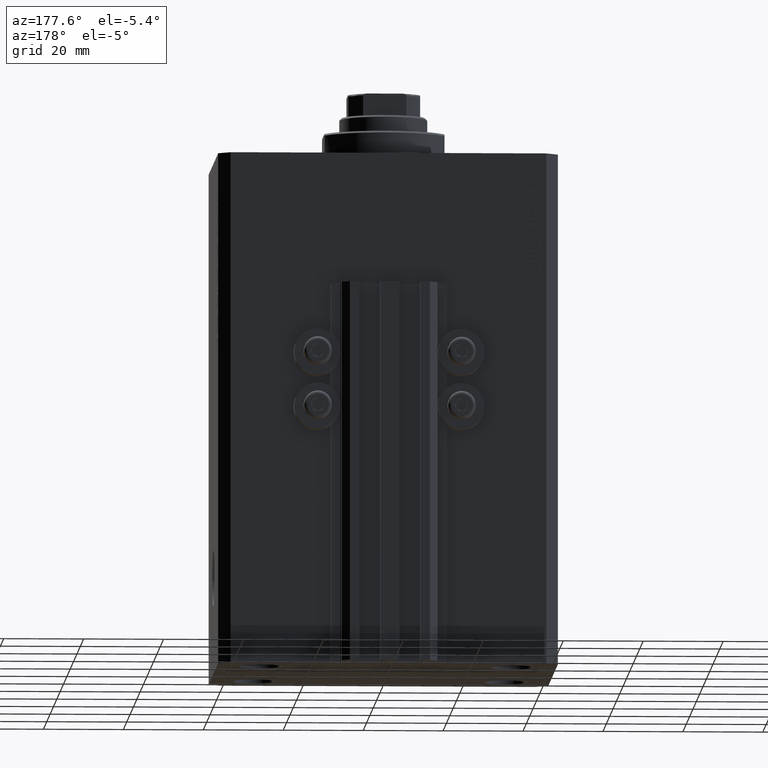
[diagram: clean part render]
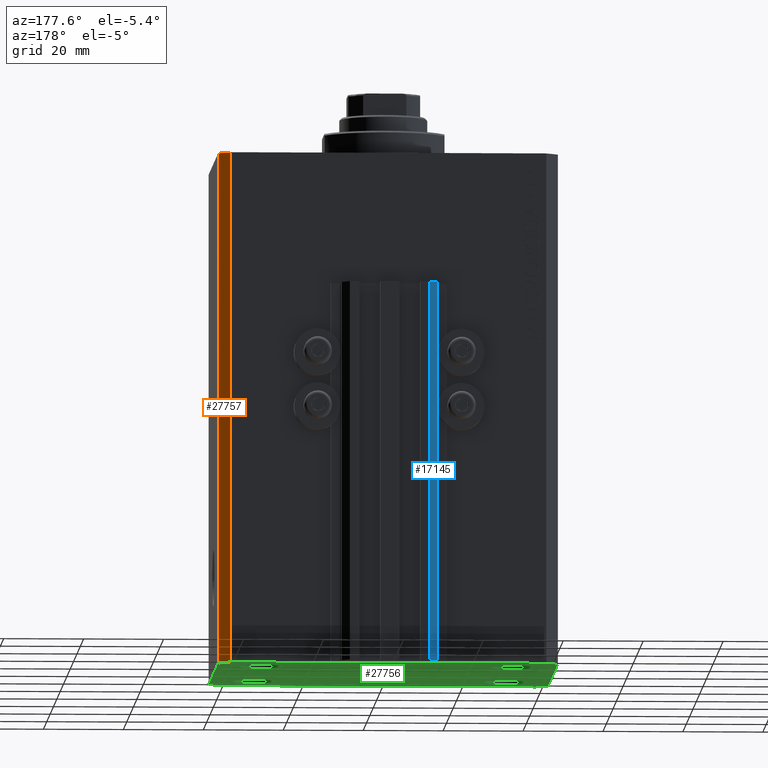
[diagram: same view with three faces highlighted in distinct colors, each labeled with its STEP entity id]
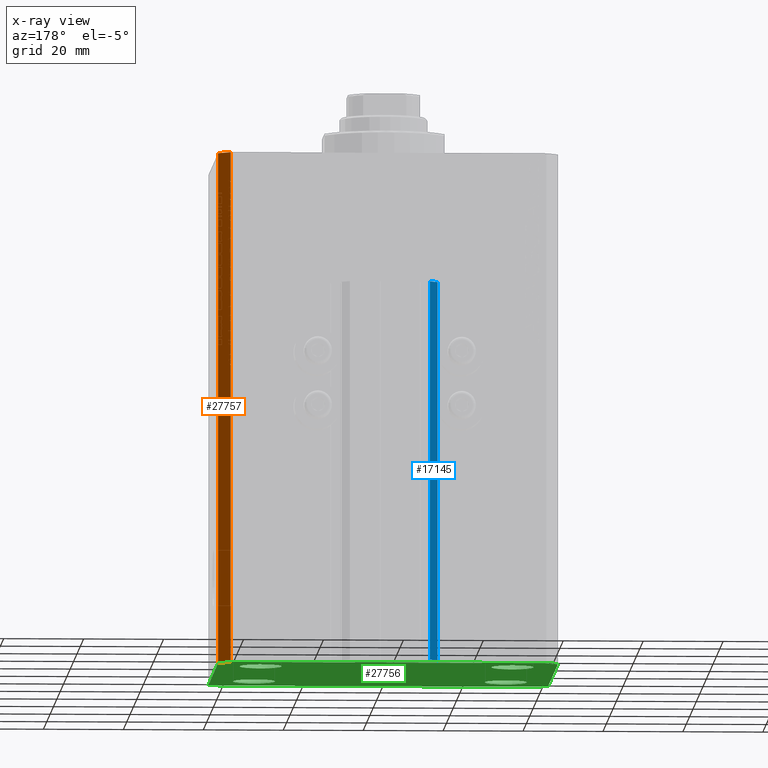
[diagram: x-ray of the same camera — body ghosted, the three highlighted faces saturated]
A machine part, auxiliary view with three faces highlighted in distinct colors.
The next image is the same camera in x-ray (body ghosted, the three faces saturated) — at least one of them is partly hidden behind the body in this view.
Their STEP definitions:

[orange] entity #27757 — the highlighted planar face has unit normal (0.7071, 0.7071, 0).
#1382 = ORIENTED_EDGE ( 'NONE', *, *, #3587, .F. ) ;
#1641 = VECTOR ( 'NONE', #7690, 1000.000000000000000 ) ;
#3587 = EDGE_CURVE ( 'NONE', #23645, #29086, #40416, .T. ) ;
#5223 = EDGE_CURVE ( 'NONE', #29086, #9420, #15084, .T. ) ;
#6011 = LINE ( 'NONE', #28218, #29145 ) ;
#6772 = AXIS2_PLACEMENT_3D ( 'NONE', #38825, #32137, #9431 ) ;
#7690 = DIRECTION ( 'NONE',  ( 0.000000000000000000, 0.000000000000000000, 1.000000000000000000 ) ) ;
#9420 = VERTEX_POINT ( 'NONE', #9746 ) ;
#9431 = DIRECTION ( 'NONE',  ( -0.7071067811865356934, 0.7071067811865594521, 0.000000000000000000 ) ) ;
#9746 = CARTESIAN_POINT ( 'NONE',  ( 39.50000000000056843, 31.50000000000000000, 0.000000000000000000 ) ) ;
#10333 = ORIENTED_EDGE ( 'NONE', *, *, #5223, .F. ) ;
#11222 = EDGE_CURVE ( 'NONE', #45188, #9420, #6011, .T. ) ;
#15084 = LINE ( 'NONE', #40394, #32528 ) ;
#16304 = CARTESIAN_POINT ( 'NONE',  ( 39.50000000000056843, 31.50000000000000000, -128.0000000000000000 ) ) ;
#17015 = CARTESIAN_POINT ( 'NONE',  ( 42.50000000000051870, 28.49999999999995381, -128.0000000000000000 ) ) ;
#23645 = VERTEX_POINT ( 'NONE', #17015 ) ;
#23953 = LINE ( 'NONE', #38520, #37685 ) ;
#27757 = ADVANCED_FACE ( 'NONE', ( #35467 ), #42633, .T. ) ;
#28218 = CARTESIAN_POINT ( 'NONE',  ( 39.50000000000056843, 31.50000000000000000, -128.0000000000000000 ) ) ;
#29086 = VERTEX_POINT ( 'NONE', #46627 ) ;
#29145 = VECTOR ( 'NONE', #42074, 1000.000000000000000 ) ;
#32137 = DIRECTION ( 'NONE',  ( 0.7071067811865594521, 0.7071067811865356934, -0.000000000000000000 ) ) ;
#32180 = ORIENTED_EDGE ( 'NONE', *, *, #11222, .T. ) ;
#32528 = VECTOR ( 'NONE', #44210, 1000.000000000000114 ) ;
#32801 = CARTESIAN_POINT ( 'NONE',  ( 42.50000000000051870, 28.49999999999995381, -128.0000000000000000 ) ) ;
#35467 = FACE_OUTER_BOUND ( 'NONE', #40584, .T. ) ;
#36109 = DIRECTION ( 'NONE',  ( -0.7071067811865356934, 0.7071067811865594521, 0.000000000000000000 ) ) ;
#37685 = VECTOR ( 'NONE', #36109, 1000.000000000000114 ) ;
#38520 = CARTESIAN_POINT ( 'NONE',  ( 42.50000000000051870, 28.49999999999995381, -128.0000000000000000 ) ) ;
#38825 = CARTESIAN_POINT ( 'NONE',  ( 42.50000000000051870, 28.49999999999995381, -128.0000000000000000 ) ) ;
#40394 = CARTESIAN_POINT ( 'NONE',  ( 42.50000000000051870, 28.49999999999995381, 0.000000000000000000 ) ) ;
#40416 = LINE ( 'NONE', #32801, #1641 ) ;
#40584 = EDGE_LOOP ( 'NONE', ( #10333, #1382, #45130, #32180 ) ) ;
#42074 = DIRECTION ( 'NONE',  ( 0.000000000000000000, 0.000000000000000000, 1.000000000000000000 ) ) ;
#42633 = PLANE ( 'NONE',  #6772 ) ;
#44210 = DIRECTION ( 'NONE',  ( -0.7071067811865356934, 0.7071067811865594521, 0.000000000000000000 ) ) ;
#45130 = ORIENTED_EDGE ( 'NONE', *, *, #45237, .T. ) ;
#45188 = VERTEX_POINT ( 'NONE', #16304 ) ;
#45237 = EDGE_CURVE ( 'NONE', #23645, #45188, #23953, .T. ) ;
#46627 = CARTESIAN_POINT ( 'NONE',  ( 42.50000000000051870, 28.49999999999995381, 0.000000000000000000 ) ) ;

[blue] entity #17145 — the highlighted planar face has unit normal (-0.7071, 0.7071, 0).
#1054 = EDGE_CURVE ( 'NONE', #19872, #18390, #45512, .T. ) ;
#1434 = ORIENTED_EDGE ( 'NONE', *, *, #39721, .T. ) ;
#1823 = CARTESIAN_POINT ( 'NONE',  ( -10.00000000000000000, 39.49999999999999289, -128.0000000000000000 ) ) ;
#4223 = VECTOR ( 'NONE', #45816, 1000.000000000000000 ) ;
#4295 = VECTOR ( 'NONE', #27432, 999.9999999999998863 ) ;
#5453 = LINE ( 'NONE', #34590, #4295 ) ;
#5934 = CARTESIAN_POINT ( 'NONE',  ( -12.00000000000000000, 37.49999999999999289, -128.0000000000000000 ) ) ;
#7674 = EDGE_CURVE ( 'NONE', #18390, #22037, #5453, .T. ) ;
#8493 = CARTESIAN_POINT ( 'NONE',  ( -10.00000000000000000, 39.49999999999999289, -128.0000000000000000 ) ) ;
#9076 = ORIENTED_EDGE ( 'NONE', *, *, #9330, .T. ) ;
#9330 = EDGE_CURVE ( 'NONE', #38324, #22037, #14855, .T. ) ;
#9436 = DIRECTION ( 'NONE',  ( 0.000000000000000000, 0.000000000000000000, 1.000000000000000000 ) ) ;
#10533 = PLANE ( 'NONE',  #29706 ) ;
#12041 = VECTOR ( 'NONE', #37871, 999.9999999999998863 ) ;
#13872 = CARTESIAN_POINT ( 'NONE',  ( -10.00000000000000000, 39.49999999999999289, -128.0000000000000000 ) ) ;
#14855 = LINE ( 'NONE', #5934, #4223 ) ;
#17145 = ADVANCED_FACE ( 'NONE', ( #46585 ), #10533, .T. ) ;
#18390 = VERTEX_POINT ( 'NONE', #18978 ) ;
#18978 = CARTESIAN_POINT ( 'NONE',  ( -10.00000000000000000, 39.49999999999999289, -33.00000000000000000 ) ) ;
#19872 = VERTEX_POINT ( 'NONE', #25732 ) ;
#22037 = VERTEX_POINT ( 'NONE', #34097 ) ;
#23776 = VECTOR ( 'NONE', #9436, 1000.000000000000000 ) ;
#24154 = ORIENTED_EDGE ( 'NONE', *, *, #1054, .F. ) ;
#25732 = CARTESIAN_POINT ( 'NONE',  ( -10.00000000000000000, 39.49999999999999289, -128.0000000000000000 ) ) ;
#27432 = DIRECTION ( 'NONE',  ( -0.7071067811865472397, -0.7071067811865479058, 0.000000000000000000 ) ) ;
#28345 = ORIENTED_EDGE ( 'NONE', *, *, #7674, .F. ) ;
#29706 = AXIS2_PLACEMENT_3D ( 'NONE', #13872, #46825, #43002 ) ;
#32543 = EDGE_LOOP ( 'NONE', ( #28345, #24154, #1434, #9076 ) ) ;
#34097 = CARTESIAN_POINT ( 'NONE',  ( -12.00000000000000000, 37.49999999999999289, -33.00000000000000000 ) ) ;
#34590 = CARTESIAN_POINT ( 'NONE',  ( -10.00000000000000000, 39.49999999999999289, -33.00000000000000000 ) ) ;
#35815 = CARTESIAN_POINT ( 'NONE',  ( -12.00000000000000000, 37.49999999999999289, -128.0000000000000000 ) ) ;
#37871 = DIRECTION ( 'NONE',  ( -0.7071067811865472397, -0.7071067811865479058, 0.000000000000000000 ) ) ;
#38324 = VERTEX_POINT ( 'NONE', #35815 ) ;
#39721 = EDGE_CURVE ( 'NONE', #19872, #38324, #45029, .T. ) ;
#43002 = DIRECTION ( 'NONE',  ( -0.7071067811865472397, -0.7071067811865479058, 0.000000000000000000 ) ) ;
#45029 = LINE ( 'NONE', #8493, #12041 ) ;
#45512 = LINE ( 'NONE', #1823, #23776 ) ;
#45816 = DIRECTION ( 'NONE',  ( 0.000000000000000000, 0.000000000000000000, 1.000000000000000000 ) ) ;
#46585 = FACE_OUTER_BOUND ( 'NONE', #32543, .T. ) ;
#46825 = DIRECTION ( 'NONE',  ( -0.7071067811865479058, 0.7071067811865472397, 0.000000000000000000 ) ) ;

[green] entity #27756 — the highlighted planar face has unit normal (0, 0, 1).
#448 = ORIENTED_EDGE ( 'NONE', *, *, #43431, .F. ) ;
#671 = CARTESIAN_POINT ( 'NONE',  ( -42.50000000000000000, 28.50000000000000000, -128.0000000000000000 ) ) ;
#700 = AXIS2_PLACEMENT_3D ( 'NONE', #7497, #37110, #14906 ) ;
#928 = CARTESIAN_POINT ( 'NONE',  ( 39.50000000000056843, 31.50000000000000000, -128.0000000000000000 ) ) ;
#1484 = CARTESIAN_POINT ( 'NONE',  ( 36.75000000000000000, 19.99999999999999289, -128.0000000000000000 ) ) ;
#1999 = CARTESIAN_POINT ( 'NONE',  ( 31.49999999999999289, -20.00000000000000355, -128.0000000000000000 ) ) ;
#2210 = AXIS2_PLACEMENT_3D ( 'NONE', #42857, #46201, #17318 ) ;
#2285 = DIRECTION ( 'NONE',  ( -0.000000000000000000, -0.000000000000000000, -1.000000000000000000 ) ) ;
#2968 = ORIENTED_EDGE ( 'NONE', *, *, #3173, .F. ) ;
#3173 = EDGE_CURVE ( 'NONE', #24165, #45354, #42175, .T. ) ;
#3381 = VERTEX_POINT ( 'NONE', #4165 ) ;
#3611 = DIRECTION ( 'NONE',  ( 8.886653596232072440E-15, 1.000000000000000000, 0.000000000000000000 ) ) ;
#3906 = CARTESIAN_POINT ( 'NONE',  ( -26.25000000000000000, 19.99999999999999645, -128.0000000000000000 ) ) ;
#4003 = CIRCLE ( 'NONE', #4760, 5.249999999999997335 ) ;
#4165 = CARTESIAN_POINT ( 'NONE',  ( 36.74999999999999289, -20.00000000000000355, -128.0000000000000000 ) ) ;
#4440 = CARTESIAN_POINT ( 'NONE',  ( -42.50000000000000000, -28.50000000000000000, -128.0000000000000000 ) ) ;
#4626 = CARTESIAN_POINT ( 'NONE',  ( 42.50000000000000711, -28.50000000000000355, -128.0000000000000000 ) ) ;
#4760 = AXIS2_PLACEMENT_3D ( 'NONE', #1999, #45915, #13211 ) ;
#4762 = EDGE_CURVE ( 'NONE', #45188, #6980, #32937, .T. ) ;
#5024 = ORIENTED_EDGE ( 'NONE', *, *, #24300, .F. ) ;
#5347 = CARTESIAN_POINT ( 'NONE',  ( -36.74999999999999289, -20.00000000000000355, -128.0000000000000000 ) ) ;
#5610 = CIRCLE ( 'NONE', #32321, 5.249999999999997335 ) ;
#6055 = CIRCLE ( 'NONE', #700, 5.250000000000000888 ) ;
#6322 = CARTESIAN_POINT ( 'NONE',  ( 31.49999999999999289, -20.00000000000000355, -128.0000000000000000 ) ) ;
#6344 = CARTESIAN_POINT ( 'NONE',  ( -42.50000000000000000, -28.50000000000000000, -128.0000000000000000 ) ) ;
#6980 = VERTEX_POINT ( 'NONE', #44256 ) ;
#7130 = EDGE_LOOP ( 'NONE', ( #448, #32459 ) ) ;
#7497 = CARTESIAN_POINT ( 'NONE',  ( -31.50000000000000000, 19.99999999999999645, -128.0000000000000000 ) ) ;
#7644 = VECTOR ( 'NONE', #42881, 1000.000000000000000 ) ;
#7651 = AXIS2_PLACEMENT_3D ( 'NONE', #31691, #42662, #34328 ) ;
#7848 = AXIS2_PLACEMENT_3D ( 'NONE', #14786, #29362, #29601 ) ;
#9626 = DIRECTION ( 'NONE',  ( 1.000000000000000000, 0.000000000000000000, 0.000000000000000000 ) ) ;
#10211 = CARTESIAN_POINT ( 'NONE',  ( 26.25000000000000355, 19.99999999999999289, -128.0000000000000000 ) ) ;
#10669 = VERTEX_POINT ( 'NONE', #44052 ) ;
#11158 = LINE ( 'NONE', #671, #17056 ) ;
#12857 = LINE ( 'NONE', #41504, #20864 ) ;
#13211 = DIRECTION ( 'NONE',  ( 1.000000000000000000, 0.000000000000000000, 0.000000000000000000 ) ) ;
#13265 = FACE_OUTER_BOUND ( 'NONE', #40485, .T. ) ;
#13371 = EDGE_CURVE ( 'NONE', #23411, #28753, #12857, .T. ) ;
#13475 = ORIENTED_EDGE ( 'NONE', *, *, #15018, .F. ) ;
#13506 = CARTESIAN_POINT ( 'NONE',  ( -26.24999999999999289, -20.00000000000000355, -128.0000000000000000 ) ) ;
#13827 = ORIENTED_EDGE ( 'NONE', *, *, #21075, .F. ) ;
#14484 = EDGE_CURVE ( 'NONE', #45354, #23411, #26187, .T. ) ;
#14786 = CARTESIAN_POINT ( 'NONE',  ( -31.49999999999999289, -20.00000000000000355, -128.0000000000000000 ) ) ;
#14906 = DIRECTION ( 'NONE',  ( 1.000000000000000000, 0.000000000000000000, 0.000000000000000000 ) ) ;
#14951 = VECTOR ( 'NONE', #33164, 1000.000000000000000 ) ;
#15018 = EDGE_CURVE ( 'NONE', #41580, #46624, #6055, .T. ) ;
#16304 = CARTESIAN_POINT ( 'NONE',  ( 39.50000000000056843, 31.50000000000000000, -128.0000000000000000 ) ) ;
#16367 = DIRECTION ( 'NONE',  ( 1.000000000000000000, 0.000000000000000000, 0.000000000000000000 ) ) ;
#17015 = CARTESIAN_POINT ( 'NONE',  ( 42.50000000000051870, 28.49999999999995381, -128.0000000000000000 ) ) ;
#17018 = DIRECTION ( 'NONE',  ( -0.7071067811865471286, -0.7071067811865479058, 0.000000000000000000 ) ) ;
#17056 = VECTOR ( 'NONE', #25735, 1000.000000000000000 ) ;
#17318 = DIRECTION ( 'NONE',  ( 1.000000000000000000, 0.000000000000000000, -0.000000000000000000 ) ) ;
#19352 = VECTOR ( 'NONE', #45517, 1000.000000000000000 ) ;
#19733 = CARTESIAN_POINT ( 'NONE',  ( -36.75000000000000000, 19.99999999999999645, -128.0000000000000000 ) ) ;
#19988 = DIRECTION ( 'NONE',  ( -0.000000000000000000, -0.000000000000000000, -1.000000000000000000 ) ) ;
#20442 = FACE_BOUND ( 'NONE', #41554, .T. ) ;
#20649 = EDGE_LOOP ( 'NONE', ( #13475, #13827 ) ) ;
#20864 = VECTOR ( 'NONE', #38400, 1000.000000000000000 ) ;
#21075 = EDGE_CURVE ( 'NONE', #46624, #41580, #30549, .T. ) ;
#21777 = CARTESIAN_POINT ( 'NONE',  ( 42.50000000000000711, -28.50000000000000355, -128.0000000000000000 ) ) ;
#21833 = VERTEX_POINT ( 'NONE', #43653 ) ;
#22676 = AXIS2_PLACEMENT_3D ( 'NONE', #39722, #47114, #33489 ) ;
#22844 = EDGE_CURVE ( 'NONE', #28753, #23645, #32064, .T. ) ;
#23074 = CIRCLE ( 'NONE', #39840, 5.249999999999997335 ) ;
#23349 = ORIENTED_EDGE ( 'NONE', *, *, #22844, .F. ) ;
#23411 = VERTEX_POINT ( 'NONE', #33981 ) ;
#23645 = VERTEX_POINT ( 'NONE', #17015 ) ;
#23953 = LINE ( 'NONE', #38520, #37685 ) ;
#24055 = ORIENTED_EDGE ( 'NONE', *, *, #13371, .F. ) ;
#24165 = VERTEX_POINT ( 'NONE', #4440 ) ;
#24300 = EDGE_CURVE ( 'NONE', #21833, #3381, #23074, .T. ) ;
#24460 = EDGE_CURVE ( 'NONE', #3381, #21833, #4003, .T. ) ;
#24573 = VECTOR ( 'NONE', #3611, 1000.000000000000000 ) ;
#24950 = PLANE ( 'NONE',  #2210 ) ;
#25151 = ORIENTED_EDGE ( 'NONE', *, *, #39132, .F. ) ;
#25234 = VERTEX_POINT ( 'NONE', #5347 ) ;
#25283 = ORIENTED_EDGE ( 'NONE', *, *, #25722, .F. ) ;
#25722 = EDGE_CURVE ( 'NONE', #46769, #25234, #44468, .T. ) ;
#25735 = DIRECTION ( 'NONE',  ( 0.000000000000000000, -1.000000000000000000, 0.000000000000000000 ) ) ;
#26187 = LINE ( 'NONE', #26901, #19352 ) ;
#26399 = ORIENTED_EDGE ( 'NONE', *, *, #4762, .F. ) ;
#26901 = CARTESIAN_POINT ( 'NONE',  ( -39.50000000000000711, -31.50000000000000000, -128.0000000000000000 ) ) ;
#27264 = CIRCLE ( 'NONE', #22676, 5.249999999999997335 ) ;
#27303 = VECTOR ( 'NONE', #17018, 1000.000000000000000 ) ;
#27756 = ADVANCED_FACE ( 'NONE', ( #35229, #20442, #28300, #43087, #13265 ), #24950, .F. ) ;
#28300 = FACE_BOUND ( 'NONE', #7130, .T. ) ;
#28492 = CARTESIAN_POINT ( 'NONE',  ( -31.49999999999999289, -20.00000000000000355, -128.0000000000000000 ) ) ;
#28753 = VERTEX_POINT ( 'NONE', #4626 ) ;
#29085 = EDGE_CURVE ( 'NONE', #25234, #46769, #38750, .T. ) ;
#29362 = DIRECTION ( 'NONE',  ( -0.000000000000000000, -0.000000000000000000, -1.000000000000000000 ) ) ;
#29421 = VERTEX_POINT ( 'NONE', #10211 ) ;
#29601 = DIRECTION ( 'NONE',  ( 1.000000000000000000, 0.000000000000000000, 0.000000000000000000 ) ) ;
#29602 = AXIS2_PLACEMENT_3D ( 'NONE', #28492, #42586, #9626 ) ;
#29963 = VERTEX_POINT ( 'NONE', #1484 ) ;
#30549 = CIRCLE ( 'NONE', #7651, 5.250000000000000888 ) ;
#31000 = ORIENTED_EDGE ( 'NONE', *, *, #24460, .F. ) ;
#31684 = EDGE_CURVE ( 'NONE', #29421, #29963, #27264, .T. ) ;
#31691 = CARTESIAN_POINT ( 'NONE',  ( -31.50000000000000000, 19.99999999999999645, -128.0000000000000000 ) ) ;
#32064 = LINE ( 'NONE', #21777, #24573 ) ;
#32321 = AXIS2_PLACEMENT_3D ( 'NONE', #34080, #19988, #45055 ) ;
#32459 = ORIENTED_EDGE ( 'NONE', *, *, #31684, .F. ) ;
#32937 = LINE ( 'NONE', #928, #14951 ) ;
#33164 = DIRECTION ( 'NONE',  ( -1.000000000000000000, 0.000000000000000000, 0.000000000000000000 ) ) ;
#33489 = DIRECTION ( 'NONE',  ( 1.000000000000000000, 0.000000000000000000, 0.000000000000000000 ) ) ;
#33981 = CARTESIAN_POINT ( 'NONE',  ( 39.50000000000000711, -31.50000000000000000, -128.0000000000000000 ) ) ;
#34080 = CARTESIAN_POINT ( 'NONE',  ( 31.50000000000000000, 19.99999999999999289, -128.0000000000000000 ) ) ;
#34328 = DIRECTION ( 'NONE',  ( 1.000000000000000000, 0.000000000000000000, 0.000000000000000000 ) ) ;
#35150 = ORIENTED_EDGE ( 'NONE', *, *, #14484, .F. ) ;
#35171 = CARTESIAN_POINT ( 'NONE',  ( -39.50000000000000711, 31.50000000000000000, -128.0000000000000000 ) ) ;
#35229 = FACE_BOUND ( 'NONE', #44608, .T. ) ;
#35882 = CARTESIAN_POINT ( 'NONE',  ( -39.50000000000000711, -31.50000000000000000, -128.0000000000000000 ) ) ;
#36109 = DIRECTION ( 'NONE',  ( -0.7071067811865356934, 0.7071067811865594521, 0.000000000000000000 ) ) ;
#37110 = DIRECTION ( 'NONE',  ( -0.000000000000000000, -0.000000000000000000, -1.000000000000000000 ) ) ;
#37685 = VECTOR ( 'NONE', #36109, 1000.000000000000114 ) ;
#38400 = DIRECTION ( 'NONE',  ( 0.7071067811865483499, 0.7071067811865466846, 0.000000000000000000 ) ) ;
#38520 = CARTESIAN_POINT ( 'NONE',  ( 42.50000000000051870, 28.49999999999995381, -128.0000000000000000 ) ) ;
#38750 = CIRCLE ( 'NONE', #29602, 5.250000000000000888 ) ;
#39132 = EDGE_CURVE ( 'NONE', #6980, #10669, #46383, .T. ) ;
#39722 = CARTESIAN_POINT ( 'NONE',  ( 31.50000000000000000, 19.99999999999999289, -128.0000000000000000 ) ) ;
#39840 = AXIS2_PLACEMENT_3D ( 'NONE', #6322, #2285, #16367 ) ;
#40485 = EDGE_LOOP ( 'NONE', ( #26399, #44102, #23349, #24055, #35150, #2968, #44194, #25151 ) ) ;
#41504 = CARTESIAN_POINT ( 'NONE',  ( 39.50000000000000711, -31.50000000000000000, -128.0000000000000000 ) ) ;
#41554 = EDGE_LOOP ( 'NONE', ( #31000, #5024 ) ) ;
#41580 = VERTEX_POINT ( 'NONE', #3906 ) ;
#42175 = LINE ( 'NONE', #6344, #7644 ) ;
#42586 = DIRECTION ( 'NONE',  ( -0.000000000000000000, -0.000000000000000000, -1.000000000000000000 ) ) ;
#42662 = DIRECTION ( 'NONE',  ( -0.000000000000000000, -0.000000000000000000, -1.000000000000000000 ) ) ;
#42857 = CARTESIAN_POINT ( 'NONE',  ( 0.000000000000000000, 0.000000000000000000, -128.0000000000000000 ) ) ;
#42881 = DIRECTION ( 'NONE',  ( 0.7071067811865471286, -0.7071067811865479058, 0.000000000000000000 ) ) ;
#43087 = FACE_BOUND ( 'NONE', #20649, .T. ) ;
#43359 = ORIENTED_EDGE ( 'NONE', *, *, #29085, .F. ) ;
#43431 = EDGE_CURVE ( 'NONE', #29963, #29421, #5610, .T. ) ;
#43653 = CARTESIAN_POINT ( 'NONE',  ( 26.24999999999999645, -20.00000000000000355, -128.0000000000000000 ) ) ;
#44025 = EDGE_CURVE ( 'NONE', #10669, #24165, #11158, .T. ) ;
#44052 = CARTESIAN_POINT ( 'NONE',  ( -42.50000000000000000, 28.50000000000000000, -128.0000000000000000 ) ) ;
#44102 = ORIENTED_EDGE ( 'NONE', *, *, #45237, .F. ) ;
#44194 = ORIENTED_EDGE ( 'NONE', *, *, #44025, .F. ) ;
#44256 = CARTESIAN_POINT ( 'NONE',  ( -39.50000000000000711, 31.50000000000000000, -128.0000000000000000 ) ) ;
#44468 = CIRCLE ( 'NONE', #7848, 5.250000000000000888 ) ;
#44608 = EDGE_LOOP ( 'NONE', ( #25283, #43359 ) ) ;
#45055 = DIRECTION ( 'NONE',  ( 1.000000000000000000, 0.000000000000000000, 0.000000000000000000 ) ) ;
#45188 = VERTEX_POINT ( 'NONE', #16304 ) ;
#45237 = EDGE_CURVE ( 'NONE', #23645, #45188, #23953, .T. ) ;
#45354 = VERTEX_POINT ( 'NONE', #35882 ) ;
#45517 = DIRECTION ( 'NONE',  ( 1.000000000000000000, 0.000000000000000000, 0.000000000000000000 ) ) ;
#45915 = DIRECTION ( 'NONE',  ( -0.000000000000000000, -0.000000000000000000, -1.000000000000000000 ) ) ;
#46201 = DIRECTION ( 'NONE',  ( 0.000000000000000000, 0.000000000000000000, 1.000000000000000000 ) ) ;
#46383 = LINE ( 'NONE', #35171, #27303 ) ;
#46624 = VERTEX_POINT ( 'NONE', #19733 ) ;
#46769 = VERTEX_POINT ( 'NONE', #13506 ) ;
#47114 = DIRECTION ( 'NONE',  ( -0.000000000000000000, -0.000000000000000000, -1.000000000000000000 ) ) ;